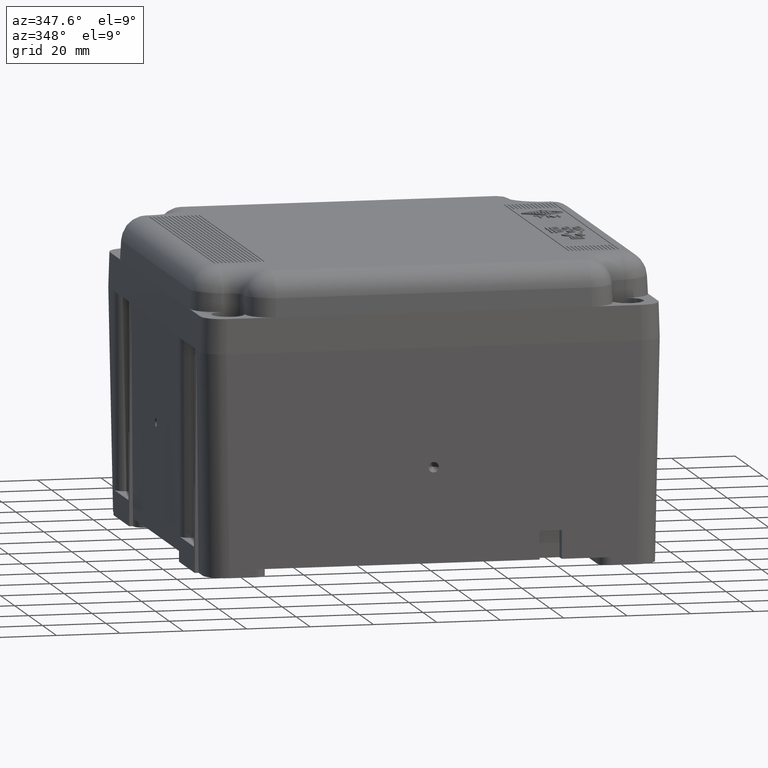
[diagram: clean part render]
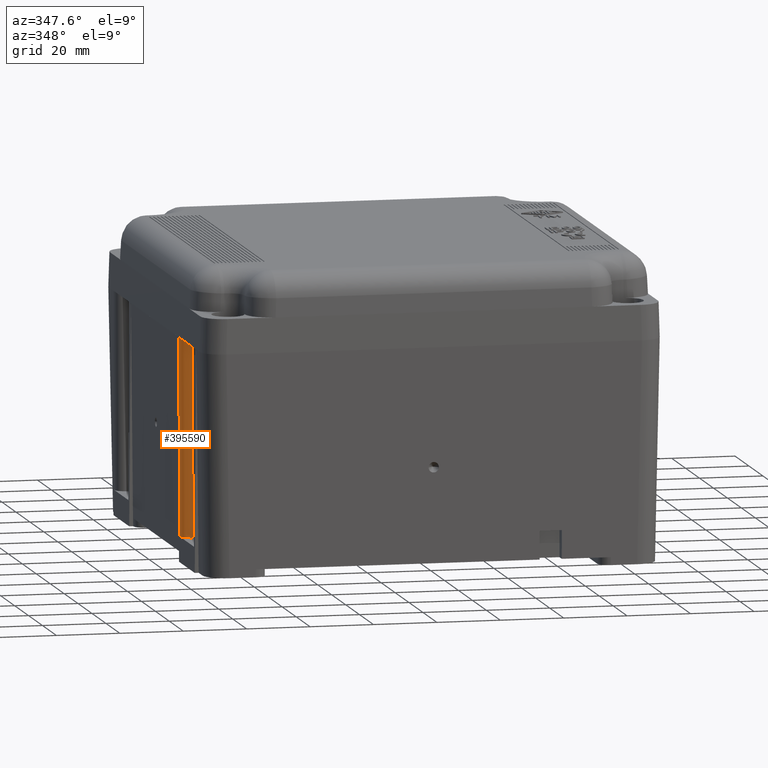
[diagram: same view with one face highlighted and labeled with its STEP entity id]
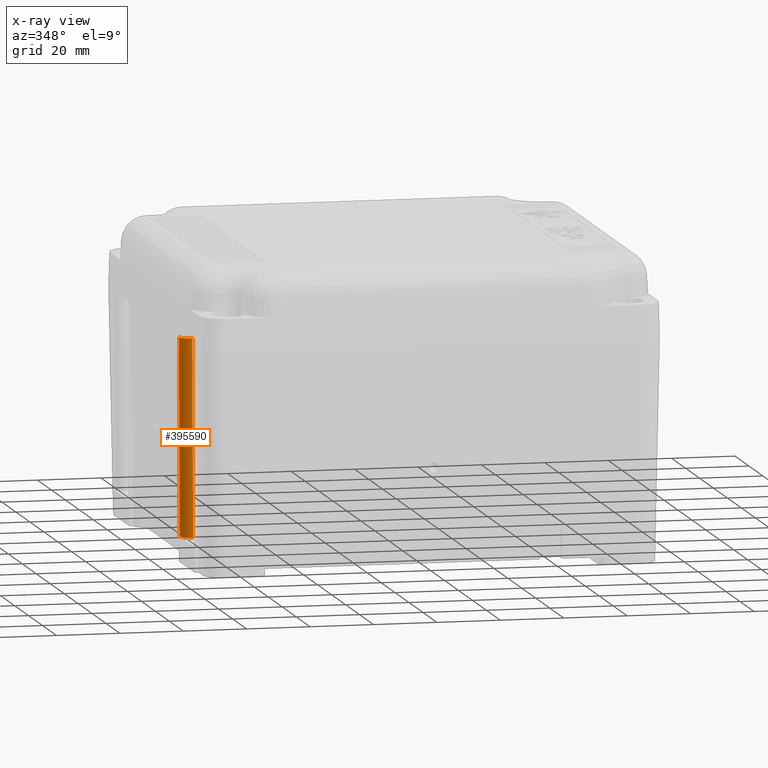
[diagram: x-ray of the same camera — body ghosted, the highlighted face saturated]
A machine part, auxiliary view. The second image highlights one B-rep face of the part: STEP entity #395590.
The next image is the same camera in x-ray: the body ghosted, the highlighted face saturated — about 0% of this face is hidden behind the body in this view.
In plain terms, the highlighted cylindrical surface (edge-blend (fillet) strip) has radius 3.5 mm, axis along (-0, 0.0175, 0.9998).
Its self-contained STEP definition (entity closure, byte-faithful):
#346690=CARTESIAN_POINT('',(-29.3000000000078,27.9999999999872,
-119.499466851853));
#346700=VERTEX_POINT('',#346690);
#346750=CARTESIAN_POINT('',(-29.3000000000075,31.4999999999872,
-119.499466851853));
#346760=DIRECTION('',(1.,-7.482383661641E-14,1.50731761477546E-16));
#346770=DIRECTION('',(-1.5073176147745E-16,1.28396504634392E-15,1.));
#346780=AXIS2_PLACEMENT_3D('',#346750,#346760,#346770);
#346790=ELLIPSE('',#346780,3.50053314815368,3.5);
#346800=CARTESIAN_POINT('',(-29.3000000000075,31.4999999999872,
-123.000000000006));
#346810=VERTEX_POINT('',#346800);
#346820=EDGE_CURVE('',#346700,#346810,#346790,.T.);
#352800=CARTESIAN_POINT('',(32.6999999999868,31.4999999999825,
-121.917785974457));
#352810=VERTEX_POINT('',#352800);
#352840=CARTESIAN_POINT('',(32.6999999999799,31.4999999999825,
-118.417252826304));
#352850=DIRECTION('',(1.,-7.482383661641E-14,1.50731761487243E-16));
#352860=DIRECTION('',(-1.50731761487147E-16,1.2839650463708E-15,1.));
#352870=AXIS2_PLACEMENT_3D('',#352840,#352850,#352860);
#352880=ELLIPSE('',#352870,3.50053314815368,3.5);
#352890=CARTESIAN_POINT('',(32.6999999999866,27.9999999999825,
-118.417252826303));
#352900=VERTEX_POINT('',#352890);
#352910=EDGE_CURVE('',#352900,#352810,#352880,.T.);
#369890=CARTESIAN_POINT('',(-9.80000000000108,27.9999999999857,
-119.159093085752));
#369900=DIRECTION('',(0.999847695156391,-7.47900323038359E-14,
0.017452406437283));
#369910=VECTOR('',#369900,1.);
#369920=LINE('',#369890,#369910);
#369930=EDGE_CURVE('',#346700,#352900,#369920,.T.);
#395430=CARTESIAN_POINT('',(-9.80000000000082,31.4999999999857,
-119.159093085752));
#395440=DIRECTION('',(0.999847695156391,-7.47900323038359E-14,
0.017452406437283));
#395450=DIRECTION('',(0.017452406437283,1.86874964741125E-16,
-0.999847695156391));
#395460=AXIS2_PLACEMENT_3D('',#395430,#395440,#395450);
#395470=CYLINDRICAL_SURFACE('',#395460,3.5);
#395480=ORIENTED_EDGE('',*,*,#369930,.F.);
#395490=ORIENTED_EDGE('',*,*,#352910,.F.);
#395500=CARTESIAN_POINT('',(-9.73891657747033,31.4999999999857,
-122.6585600188));
#395510=DIRECTION('',(0.999847695156391,-7.47900323038359E-14,
0.017452406437283));
#395520=VECTOR('',#395510,1.);
#395530=LINE('',#395500,#395520);
#395540=EDGE_CURVE('',#346810,#352810,#395530,.T.);
#395550=ORIENTED_EDGE('',*,*,#395540,.T.);
#395560=ORIENTED_EDGE('',*,*,#346820,.T.);
#395570=EDGE_LOOP('',(#395560,#395550,#395490,#395480));
#395580=FACE_OUTER_BOUND('',#395570,.T.);
#395590=ADVANCED_FACE('',(#395580),#395470,.T.);